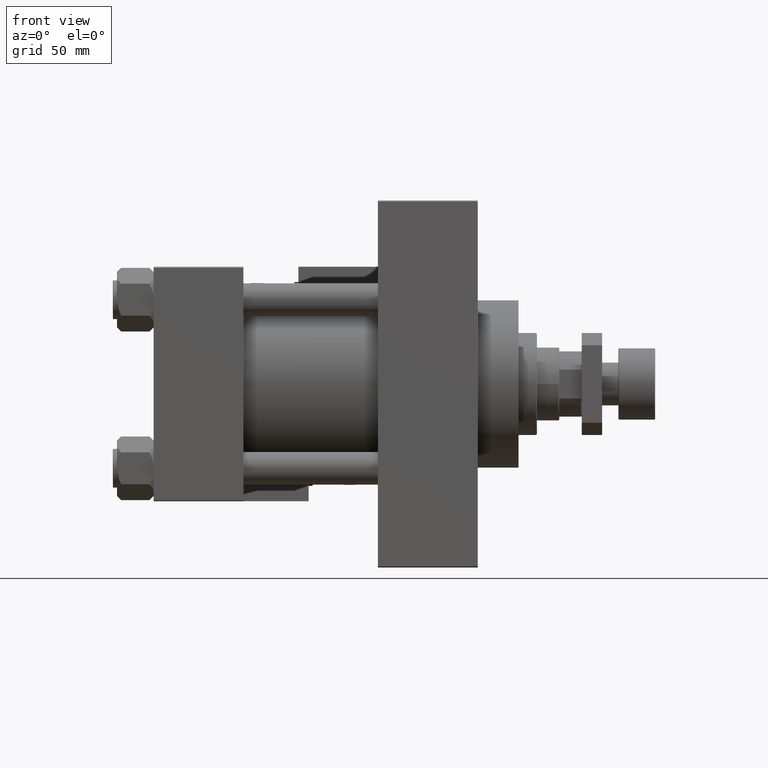
[diagram: clean part render]
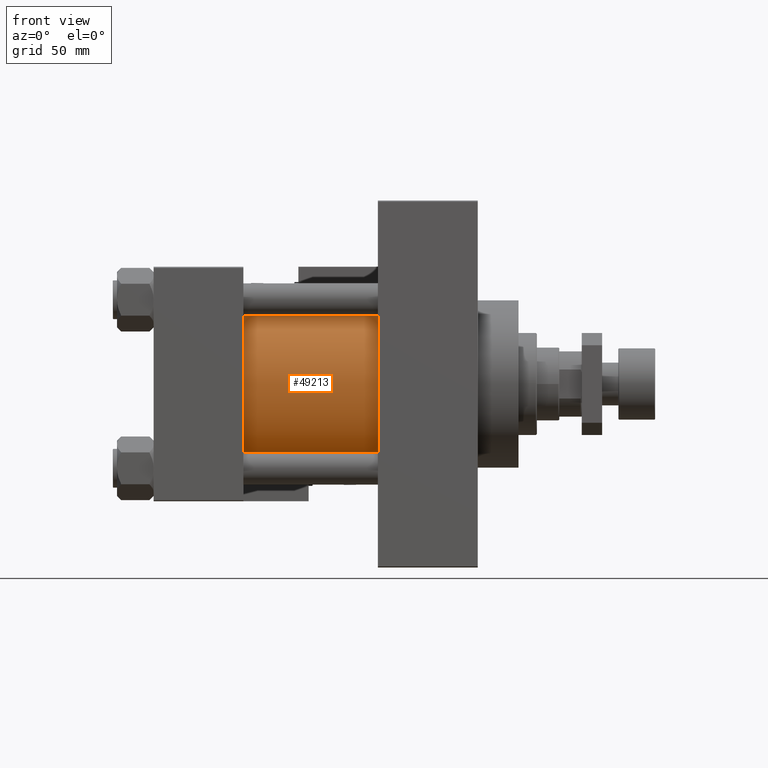
[diagram: same view with one face highlighted and labeled with its STEP entity id]
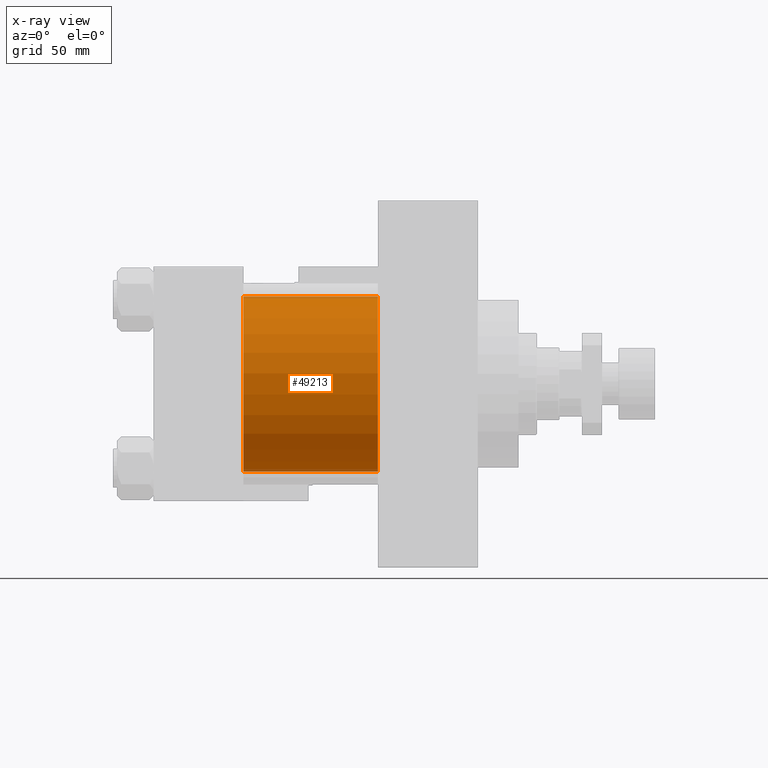
[diagram: x-ray of the same camera — body ghosted, the highlighted face saturated]
A machine part, front view. The second image highlights one B-rep face of the part: STEP entity #49213.
The next image is the same camera in x-ray: the body ghosted, the highlighted face saturated — about 3% of this face is hidden behind the body in this view.
In plain terms, the highlighted cylindrical surface (partial cylindrical patch) has radius 43 mm, axis along (-1, -0, -0).
Its self-contained STEP definition (entity closure, byte-faithful):
#2388 = DIRECTION ( 'NONE',  ( 0.000000000000000000, 0.000000000000000000, -1.000000000000000000 ) ) ;
#2500 = CARTESIAN_POINT ( 'NONE',  ( 110.0000000000000000, 2.663896022368408223E-15, -43.00000000000000000 ) ) ;
#3369 = CARTESIAN_POINT ( 'NONE',  ( 44.00000000000000000, 2.663896022368408223E-15, -43.00000000000000000 ) ) ;
#4183 = EDGE_CURVE ( 'NONE', #16244, #12467, #17502, .T. ) ;
#4435 = VECTOR ( 'NONE', #40576, 1000.000000000000000 ) ;
#4670 = ORIENTED_EDGE ( 'NONE', *, *, #7201, .T. ) ;
#5329 = AXIS2_PLACEMENT_3D ( 'NONE', #21758, #21228, #34261 ) ;
#5533 = EDGE_LOOP ( 'NONE', ( #52240, #52352, #4670, #32335 ) ) ;
#7187 = EDGE_CURVE ( 'NONE', #14284, #12467, #22113, .T. ) ;
#7201 = EDGE_CURVE ( 'NONE', #36716, #16244, #52839, .T. ) ;
#7203 = CYLINDRICAL_SURFACE ( 'NONE', #25827, 43.00000000000000000 ) ;
#12467 = VERTEX_POINT ( 'NONE', #3369 ) ;
#13926 = DIRECTION ( 'NONE',  ( -1.000000000000000000, -0.000000000000000000, -0.000000000000000000 ) ) ;
#14199 = CARTESIAN_POINT ( 'NONE',  ( 110.0000000000000000, 2.663896022368408223E-15, -43.00000000000000000 ) ) ;
#14284 = VERTEX_POINT ( 'NONE', #2500 ) ;
#16244 = VERTEX_POINT ( 'NONE', #52874 ) ;
#17502 = CIRCLE ( 'NONE', #5329, 43.00000000000000000 ) ;
#19368 = CARTESIAN_POINT ( 'NONE',  ( 110.0000000000000000, -2.602085213965210642E-15, 43.00000000000000000 ) ) ;
#21228 = DIRECTION ( 'NONE',  ( 1.000000000000000000, -0.000000000000000000, 0.000000000000000000 ) ) ;
#21758 = CARTESIAN_POINT ( 'NONE',  ( 44.00000000000000000, -2.602085213965210642E-15, 0.000000000000000000 ) ) ;
#22113 = LINE ( 'NONE', #14199, #30498 ) ;
#23837 = DIRECTION ( 'NONE',  ( 0.000000000000000000, 0.000000000000000000, 1.000000000000000000 ) ) ;
#24653 = AXIS2_PLACEMENT_3D ( 'NONE', #31517, #52475, #2388 ) ;
#25827 = AXIS2_PLACEMENT_3D ( 'NONE', #35805, #44228, #23837 ) ;
#26994 = CARTESIAN_POINT ( 'NONE',  ( 110.0000000000000000, -2.602085213965210642E-15, 43.00000000000000000 ) ) ;
#30498 = VECTOR ( 'NONE', #13926, 1000.000000000000000 ) ;
#31517 = CARTESIAN_POINT ( 'NONE',  ( 110.0000000000000000, -2.602085213965210642E-15, 0.000000000000000000 ) ) ;
#32335 = ORIENTED_EDGE ( 'NONE', *, *, #4183, .T. ) ;
#34261 = DIRECTION ( 'NONE',  ( 0.000000000000000000, 0.000000000000000000, 1.000000000000000000 ) ) ;
#35805 = CARTESIAN_POINT ( 'NONE',  ( 110.0000000000000000, -2.602085213965210642E-15, 0.000000000000000000 ) ) ;
#36716 = VERTEX_POINT ( 'NONE', #26994 ) ;
#37679 = CIRCLE ( 'NONE', #24653, 43.00000000000000000 ) ;
#38367 = EDGE_CURVE ( 'NONE', #36716, #14284, #37679, .T. ) ;
#40576 = DIRECTION ( 'NONE',  ( -1.000000000000000000, -0.000000000000000000, -0.000000000000000000 ) ) ;
#44228 = DIRECTION ( 'NONE',  ( -1.000000000000000000, -0.000000000000000000, -0.000000000000000000 ) ) ;
#49213 = ADVANCED_FACE ( 'NONE', ( #52135 ), #7203, .T. ) ;
#52135 = FACE_OUTER_BOUND ( 'NONE', #5533, .T. ) ;
#52240 = ORIENTED_EDGE ( 'NONE', *, *, #7187, .F. ) ;
#52352 = ORIENTED_EDGE ( 'NONE', *, *, #38367, .F. ) ;
#52475 = DIRECTION ( 'NONE',  ( 1.000000000000000000, 0.000000000000000000, 0.000000000000000000 ) ) ;
#52839 = LINE ( 'NONE', #19368, #4435 ) ;
#52874 = CARTESIAN_POINT ( 'NONE',  ( 44.00000000000000000, -2.602085213965210642E-15, 43.00000000000000000 ) ) ;